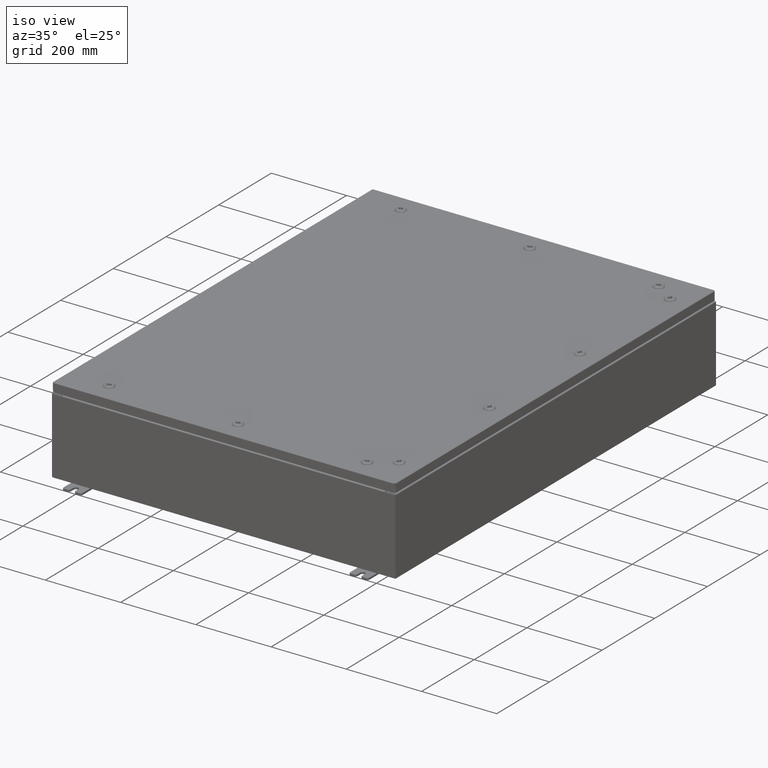
[diagram: clean part render]
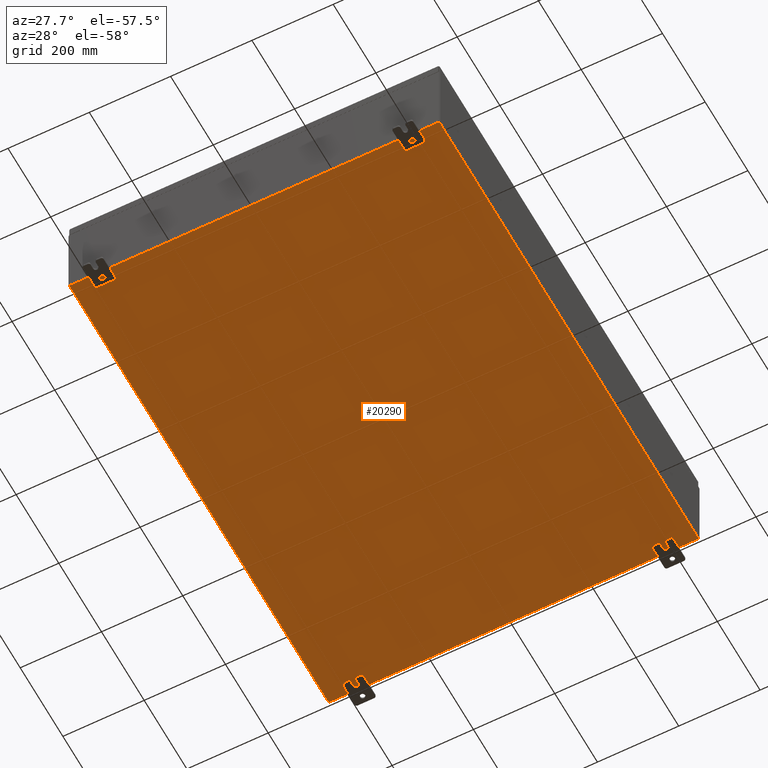
[diagram: tour spotlight — one face highlighted and labeled with its STEP entity id]
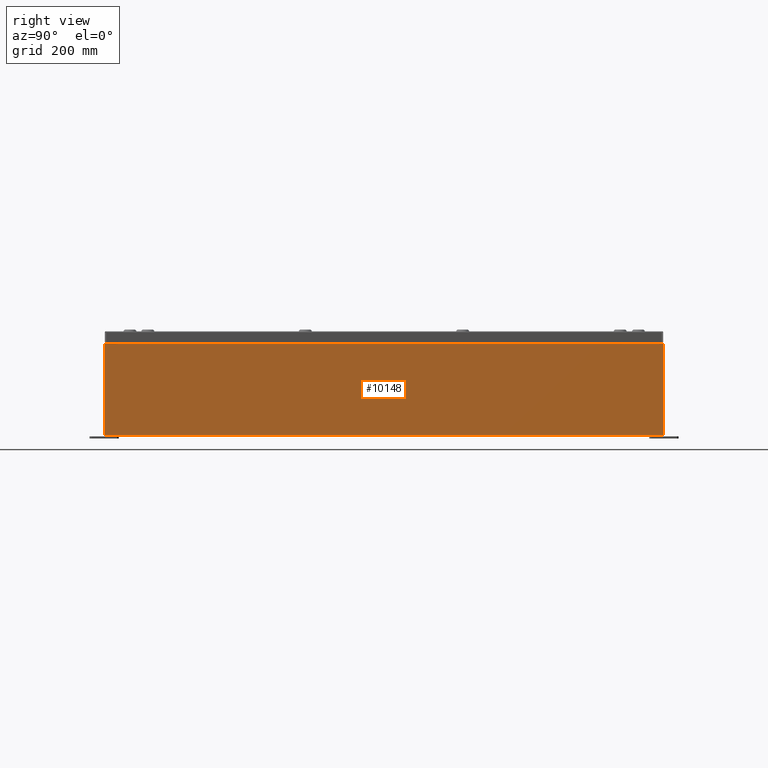
[diagram: tour spotlight — one face highlighted and labeled with its STEP entity id]
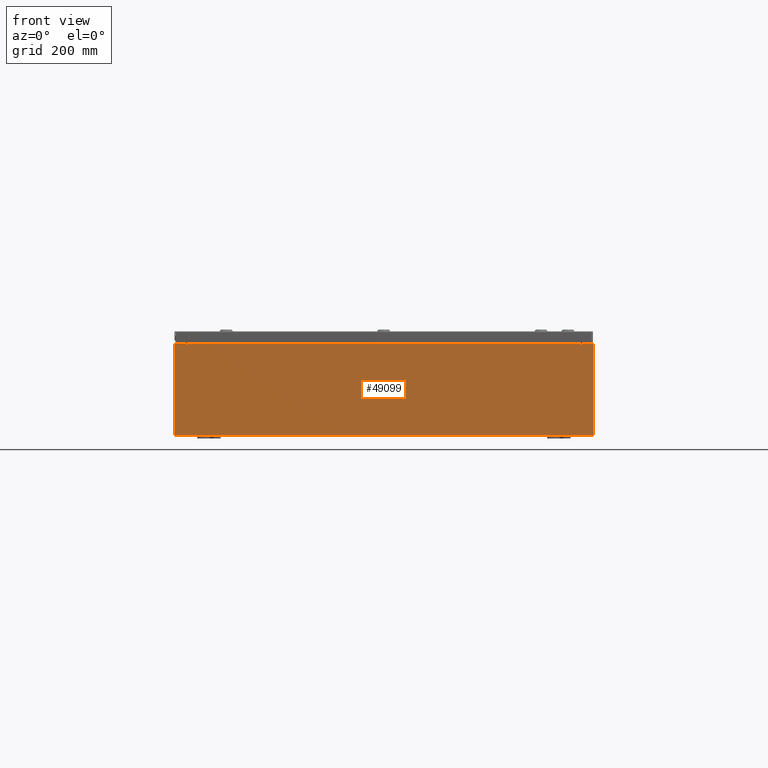
[diagram: tour spotlight — one face highlighted and labeled with its STEP entity id]
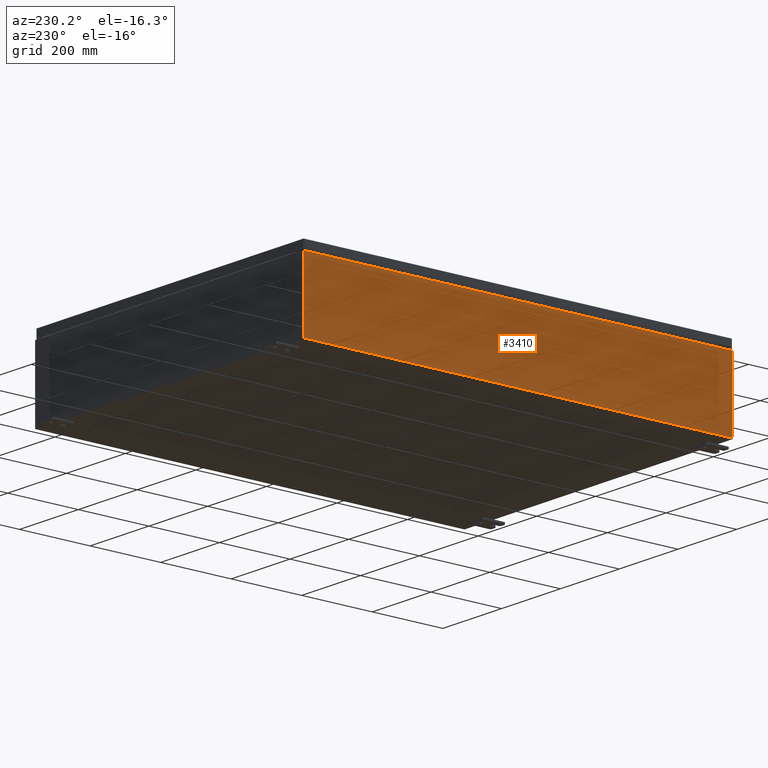
[diagram: tour spotlight — one face highlighted and labeled with its STEP entity id]
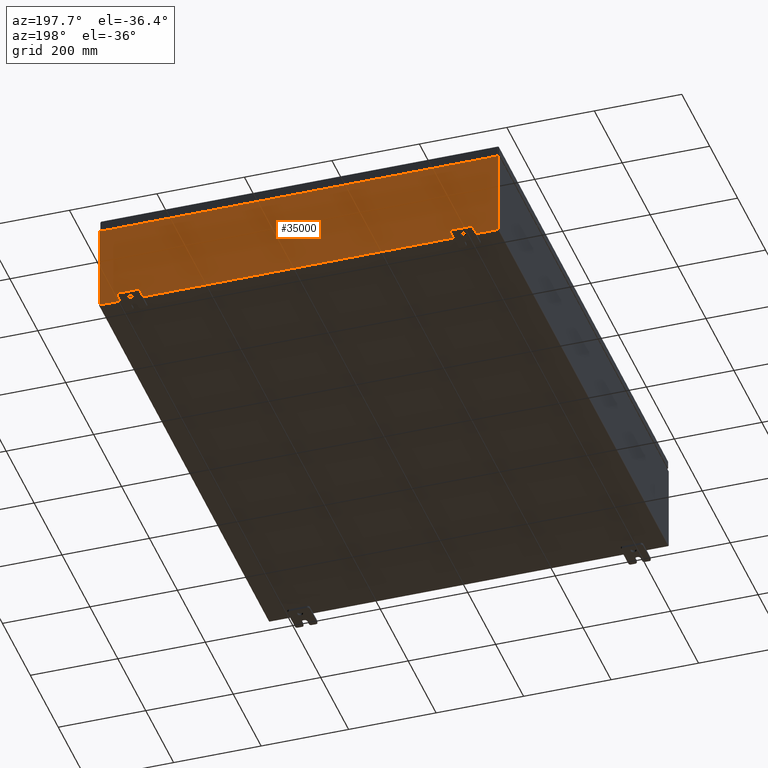
[diagram: tour spotlight — one face highlighted and labeled with its STEP entity id]
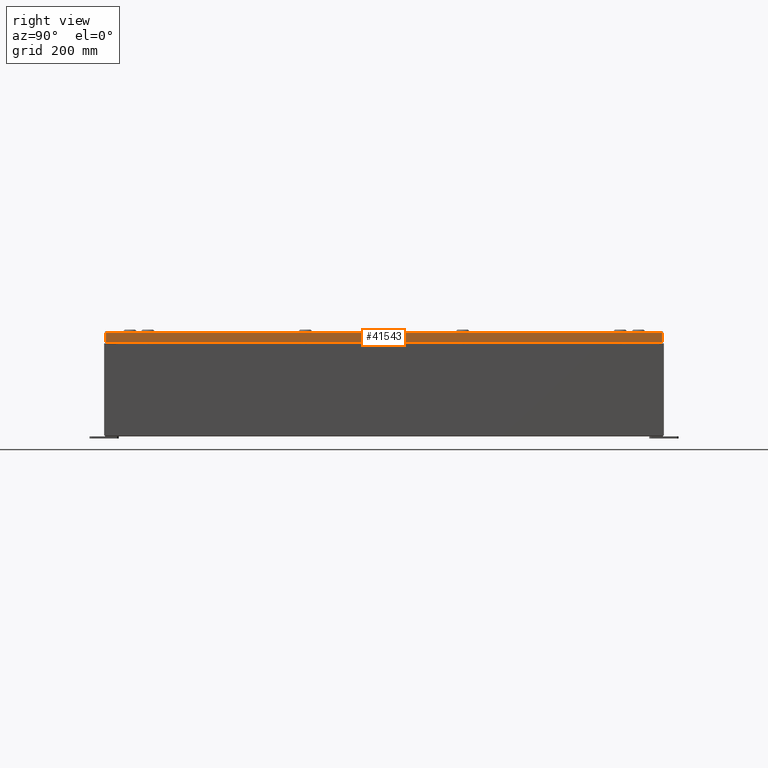
[diagram: tour spotlight — one face highlighted and labeled with its STEP entity id]
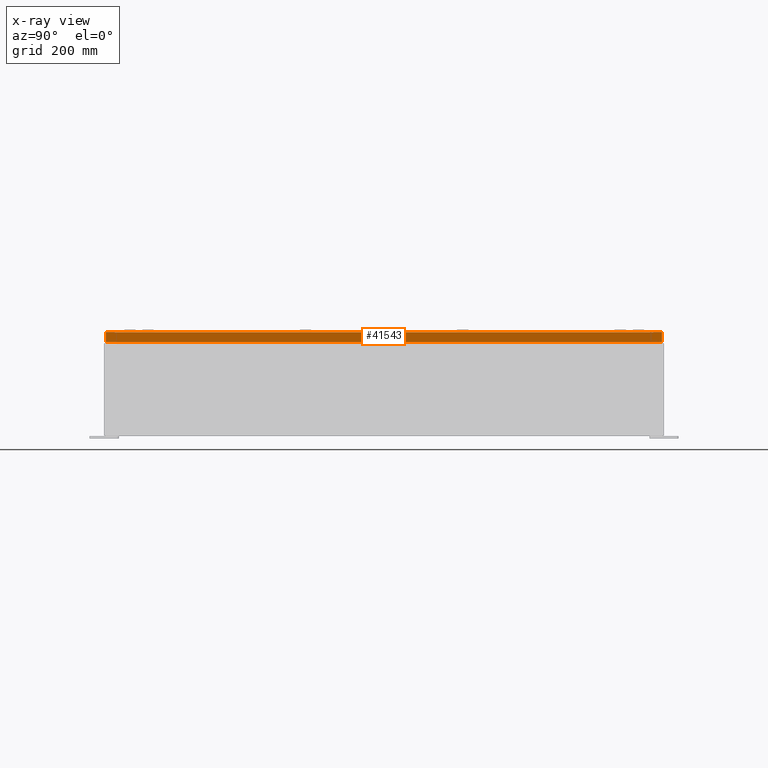
[diagram: x-ray of the same camera — body ghosted, this tour face saturated]
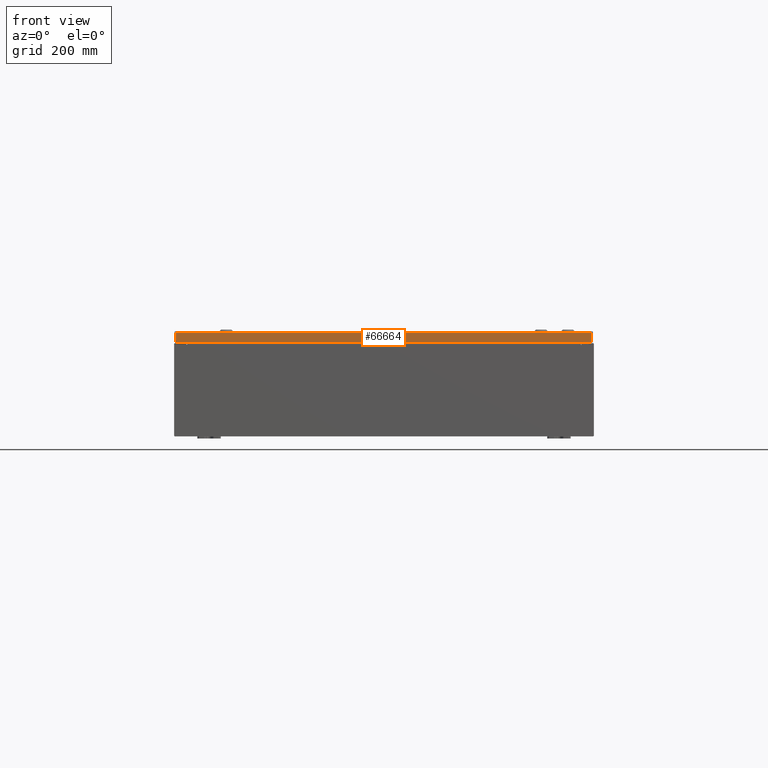
[diagram: tour spotlight — one face highlighted and labeled with its STEP entity id]
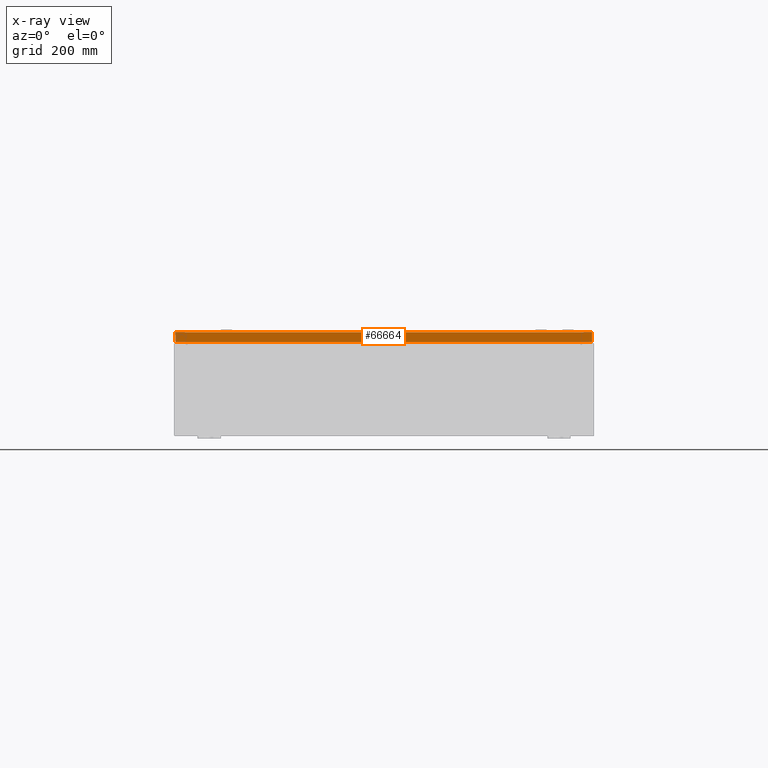
[diagram: x-ray of the same camera — body ghosted, this tour face saturated]
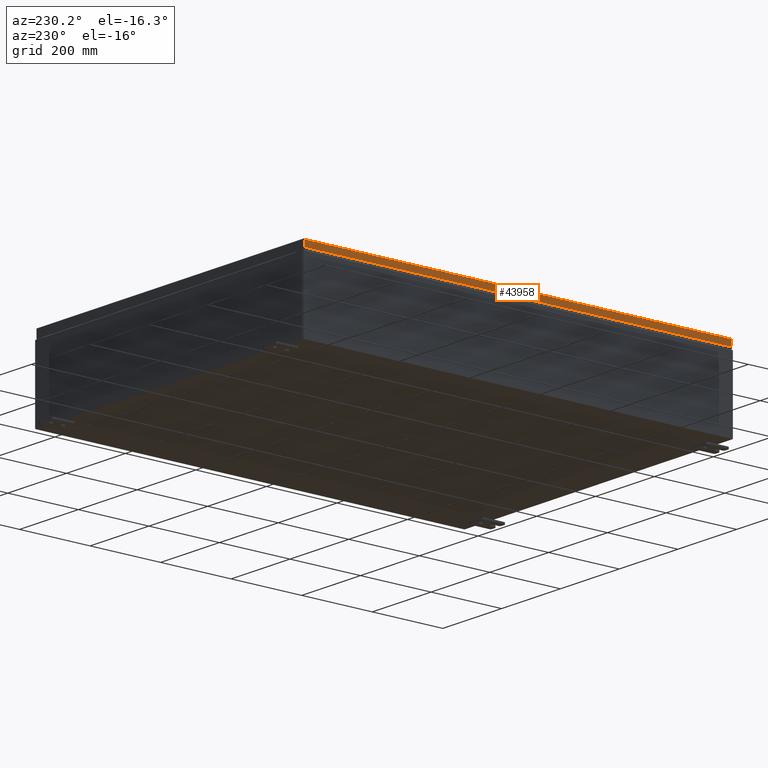
[diagram: tour spotlight — one face highlighted and labeled with its STEP entity id]
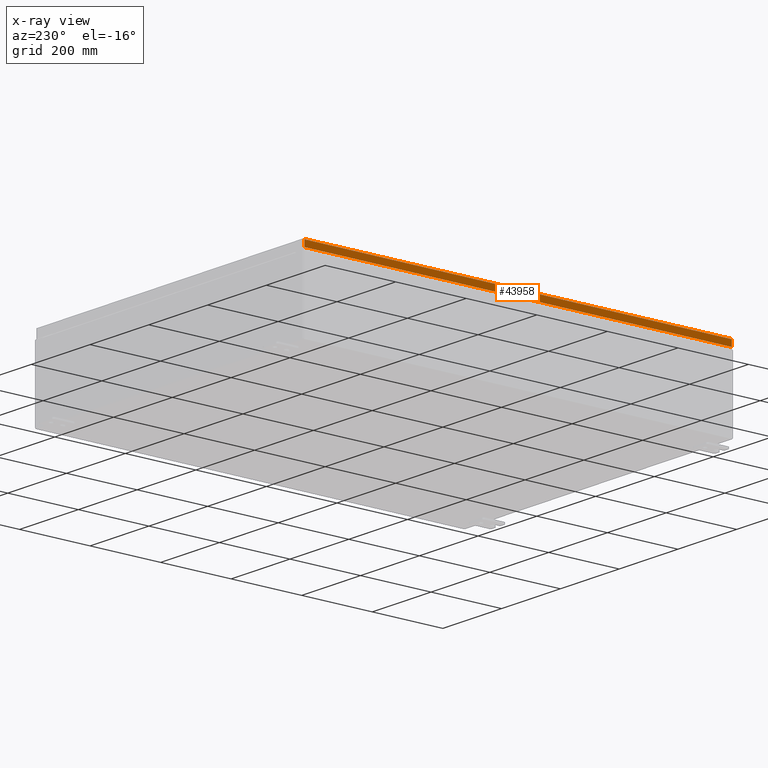
[diagram: x-ray of the same camera — body ghosted, this tour face saturated]
A machine part: a face-by-face anatomy tour. The part has 9060 B-rep faces; the first image is the clean iso view, then the 8 largest visible faces are spotlighted one at a time (largest first), each with its STEP entity span.

Face 1 — auxiliary view, entity #20290. In plain terms, the highlighted planar face has unit normal (0, 0, -1).
Definition (entity closure, byte-faithful):
#190 = ORIENTED_EDGE ( 'NONE', *, *, #42387, .T. ) ;
#993 = CARTESIAN_POINT ( 'NONE',  ( 17.91229999999999500, 23.92529999999998600, -0.07469999999999688000 ) ) ;
#1127 = VECTOR ( 'NONE', #33174, 39.37007874015748100 ) ;
#4955 = VECTOR ( 'NONE', #50678, 39.37007874015748100 ) ;
#7973 = CARTESIAN_POINT ( 'NONE',  ( -18.00000000000000400, 23.92530000000000000, -0.07470000000000000300 ) ) ;
#8254 = ORIENTED_EDGE ( 'NONE', *, *, #42299, .F. ) ;
#9530 = VERTEX_POINT ( 'NONE', #25368 ) ;
#12751 = ORIENTED_EDGE ( 'NONE', *, *, #30479, .F. ) ;
#13034 = CARTESIAN_POINT ( 'NONE',  ( -18.00000000000000400, -23.92530000000000400, -0.07470000000000000300 ) ) ;
#17628 = LINE ( 'NONE', #18793, #42533 ) ;
#18573 = LINE ( 'NONE', #27789, #1127 ) ;
#18793 = CARTESIAN_POINT ( 'NONE',  ( -17.91230000000000500, -23.92529999999998900, -0.07469999999999994700 ) ) ;
#19046 = LINE ( 'NONE', #7973, #4955 ) ;
#20290 = ADVANCED_FACE ( 'NONE', ( #42473 ), #20470, .T. ) ;
#20470 = PLANE ( 'NONE',  #54775 ) ;
#20927 = LINE ( 'NONE', #13034, #60085 ) ;
#25368 = CARTESIAN_POINT ( 'NONE',  ( -17.91230000000000500, 23.92529999999998900, -0.07470000000000000300 ) ) ;
#26153 = VERTEX_POINT ( 'NONE', #40963 ) ;
#27789 = CARTESIAN_POINT ( 'NONE',  ( 17.91229999999999500, 23.92529999999998900, -0.07469999999999688000 ) ) ;
#30479 = EDGE_CURVE ( 'NONE', #67020, #9530, #19046, .T. ) ;
#31151 = DIRECTION ( 'NONE',  ( 0.0000000000000000000, 0.0000000000000000000, -1.000000000000000000 ) ) ;
#33174 = DIRECTION ( 'NONE',  ( -0.0000000000000000000, -1.000000000000000000, -8.208677865577646300E-017 ) ) ;
#34827 = DIRECTION ( 'NONE',  ( -0.0000000000000000000, 1.000000000000000000, -0.0000000000000000000 ) ) ;
#40963 = CARTESIAN_POINT ( 'NONE',  ( -17.91230000000000500, -23.92529999999998600, -0.07469999999999994700 ) ) ;
#41600 = CARTESIAN_POINT ( 'NONE',  ( 0.0000000000000000000, 0.0000000000000000000, -0.07470000000000000300 ) ) ;
#42120 = CARTESIAN_POINT ( 'NONE',  ( 17.91229999999999500, -23.92530000000000000, -0.07470000000000000300 ) ) ;
#42299 = EDGE_CURVE ( 'NONE', #26153, #65574, #20927, .T. ) ;
#42387 = EDGE_CURVE ( 'NONE', #26153, #9530, #17628, .T. ) ;
#42473 = FACE_OUTER_BOUND ( 'NONE', #46696, .T. ) ;
#42533 = VECTOR ( 'NONE', #34827, 39.37007874015748100 ) ;
#46005 = ORIENTED_EDGE ( 'NONE', *, *, #56505, .T. ) ;
#46696 = EDGE_LOOP ( 'NONE', ( #8254, #190, #12751, #46005 ) ) ;
#50678 = DIRECTION ( 'NONE',  ( -1.000000000000000000, -0.0000000000000000000, -0.0000000000000000000 ) ) ;
#54775 = AXIS2_PLACEMENT_3D ( 'NONE', #41600, #31151, #68358 ) ;
#55516 = DIRECTION ( 'NONE',  ( 1.000000000000000000, 1.214154663850783700E-016, 0.0000000000000000000 ) ) ;
#56505 = EDGE_CURVE ( 'NONE', #67020, #65574, #18573, .T. ) ;
#60085 = VECTOR ( 'NONE', #55516, 39.37007874015748100 ) ;
#65574 = VERTEX_POINT ( 'NONE', #42120 ) ;
#67020 = VERTEX_POINT ( 'NONE', #993 ) ;
#68358 = DIRECTION ( 'NONE',  ( -1.000000000000000000, 0.0000000000000000000, -0.0000000000000000000 ) ) ;

Face 2 — right view, entity #10148. In plain terms, the highlighted planar face has unit normal (-1, 0, 0).
Definition (entity closure, byte-faithful):
#722 = CARTESIAN_POINT ( 'NONE',  ( 18.00000000000002500, -23.92529999999998900, 7.837599999999998300 ) ) ;
#1118 = CARTESIAN_POINT ( 'NONE',  ( 18.00000000000002500, 23.92529999999998900, 7.837599999999992100 ) ) ;
#2023 = ORIENTED_EDGE ( 'NONE', *, *, #8500, .T. ) ;
#7041 = VECTOR ( 'NONE', #55668, 39.37007874015748100 ) ;
#7875 = CARTESIAN_POINT ( 'NONE',  ( 18.00000000000002500, 23.92529999999998600, 7.837599999999992100 ) ) ;
#8500 = EDGE_CURVE ( 'NONE', #56664, #17378, #31369, .T. ) ;
#8735 = ORIENTED_EDGE ( 'NONE', *, *, #22962, .T. ) ;
#10148 = ADVANCED_FACE ( 'NONE', ( #55424 ), #56826, .F. ) ;
#17200 = CARTESIAN_POINT ( 'NONE',  ( 17.99999999999999600, -23.92529999999998900, -6.478858477053721600E-014 ) ) ;
#17231 = DIRECTION ( 'NONE',  ( -1.637318952042341600E-031, -1.000000000000000000, -4.567295697298285000E-017 ) ) ;
#17252 = VECTOR ( 'NONE', #27525, 39.37007874015748100 ) ;
#17378 = VERTEX_POINT ( 'NONE', #722 ) ;
#19625 = CARTESIAN_POINT ( 'NONE',  ( 17.99999999999999600, 0.0000000000000000000, -6.478858477053721600E-014 ) ) ;
#22962 = EDGE_CURVE ( 'NONE', #17378, #46799, #41548, .T. ) ;
#27525 = DIRECTION ( 'NONE',  ( -0.0000000000000000000, -1.000000000000000000, -0.0000000000000000000 ) ) ;
#28837 = VECTOR ( 'NONE', #17231, 39.37007874015748100 ) ;
#30477 = LINE ( 'NONE', #49048, #28837 ) ;
#30503 = EDGE_LOOP ( 'NONE', ( #2023, #8735, #58706, #42325 ) ) ;
#31369 = LINE ( 'NONE', #1118, #17252 ) ;
#35274 = LINE ( 'NONE', #35396, #7041 ) ;
#35396 = CARTESIAN_POINT ( 'NONE',  ( 17.99999999999999600, 23.92529999999998900, -6.478858477053721600E-014 ) ) ;
#35640 = DIRECTION ( 'NONE',  ( 3.584876173029202900E-015, 0.0000000000000000000, 1.000000000000000000 ) ) ;
#40608 = AXIS2_PLACEMENT_3D ( 'NONE', #19625, #67515, #35640 ) ;
#41548 = LINE ( 'NONE', #17200, #68192 ) ;
#42325 = ORIENTED_EDGE ( 'NONE', *, *, #54749, .T. ) ;
#44323 = CARTESIAN_POINT ( 'NONE',  ( 17.99999999999999600, -23.92529999999998900, 0.01299999999999896900 ) ) ;
#46799 = VERTEX_POINT ( 'NONE', #44323 ) ;
#48244 = EDGE_CURVE ( 'NONE', #67093, #46799, #30477, .T. ) ;
#49013 = DIRECTION ( 'NONE',  ( -3.584876173029202900E-015, 0.0000000000000000000, -1.000000000000000000 ) ) ;
#49048 = CARTESIAN_POINT ( 'NONE',  ( 17.99999999999999600, -23.92529999999998900, 0.01299999999999984700 ) ) ;
#54749 = EDGE_CURVE ( 'NONE', #67093, #56664, #35274, .T. ) ;
#55424 = FACE_OUTER_BOUND ( 'NONE', #30503, .T. ) ;
#55668 = DIRECTION ( 'NONE',  ( 3.584876173029202900E-015, 0.0000000000000000000, 1.000000000000000000 ) ) ;
#56664 = VERTEX_POINT ( 'NONE', #7875 ) ;
#56826 = PLANE ( 'NONE',  #40608 ) ;
#58706 = ORIENTED_EDGE ( 'NONE', *, *, #48244, .F. ) ;
#59769 = CARTESIAN_POINT ( 'NONE',  ( 17.99999999999999600, 23.92529999999998600, 0.01300000000000203200 ) ) ;
#67093 = VERTEX_POINT ( 'NONE', #59769 ) ;
#67515 = DIRECTION ( 'NONE',  ( -1.000000000000000000, 0.0000000000000000000, 3.584876173029202900E-015 ) ) ;
#68192 = VECTOR ( 'NONE', #49013, 39.37007874015748100 ) ;

Face 3 — front view, entity #49099. In plain terms, the highlighted planar face has unit normal (-0, 1, -0).
Definition (entity closure, byte-faithful):
#1550 = ORIENTED_EDGE ( 'NONE', *, *, #29215, .F. ) ;
#1552 = VECTOR ( 'NONE', #6249, 39.37007874015748100 ) ;
#1913 = DIRECTION ( 'NONE',  ( -8.681145560800009800E-014, 0.0000000000000000000, -1.000000000000000000 ) ) ;
#4069 = ORIENTED_EDGE ( 'NONE', *, *, #13393, .T. ) ;
#4413 = AXIS2_PLACEMENT_3D ( 'NONE', #51185, #19358, #56565 ) ;
#5976 = LINE ( 'NONE', #13303, #59167 ) ;
#6051 = CARTESIAN_POINT ( 'NONE',  ( 0.0000000000000000000, 0.0000000000000000000, 0.0000000000000000000 ) ) ;
#6249 = DIRECTION ( 'NONE',  ( 1.000000000000000000, 0.0000000000000000000, 0.0000000000000000000 ) ) ;
#7541 = VERTEX_POINT ( 'NONE', #23275 ) ;
#7636 = CARTESIAN_POINT ( 'NONE',  ( -16.88719999999999300, -0.0000000000000000000, 0.0000000000000000000 ) ) ;
#7734 = VERTEX_POINT ( 'NONE', #50905 ) ;
#8958 = CARTESIAN_POINT ( 'NONE',  ( -17.92529999999999600, 0.0000000000000000000, 3.925300000000000500 ) ) ;
#9074 = LINE ( 'NONE', #15035, #51449 ) ;
#9161 = CARTESIAN_POINT ( 'NONE',  ( -16.88719999999999300, -0.0000000000000000000, 3.874950000000000100 ) ) ;
#9480 = AXIS2_PLACEMENT_3D ( 'NONE', #6051, #27355, #64605 ) ;
#9920 = ORIENTED_EDGE ( 'NONE', *, *, #47295, .F. ) ;
#11386 = PLANE ( 'NONE',  #9480 ) ;
#11970 = CARTESIAN_POINT ( 'NONE',  ( 16.90587500000000500, 0.0000000000000000000, 3.874950000000000100 ) ) ;
#12980 = DIRECTION ( 'NONE',  ( 0.0000000000000000000, 0.0000000000000000000, -1.000000000000000000 ) ) ;
#13303 = CARTESIAN_POINT ( 'NONE',  ( 16.88720000000000700, 0.0000000000000000000, 0.0000000000000000000 ) ) ;
#13393 = EDGE_CURVE ( 'NONE', #64724, #36173, #63494, .T. ) ;
#14301 = DIRECTION ( 'NONE',  ( -0.0000000000000000000, -0.0000000000000000000, 1.000000000000000000 ) ) ;
#15035 = CARTESIAN_POINT ( 'NONE',  ( -17.92529999999999600, 0.0000000000000000000, 3.925300000000000500 ) ) ;
#16177 = CARTESIAN_POINT ( 'NONE',  ( -17.92529999999999600, 0.0000000000000000000, 3.925300000000000500 ) ) ;
#16693 = CARTESIAN_POINT ( 'NONE',  ( 17.92530000000000400, 0.0000000000000000000, 3.925300000000000500 ) ) ;
#17262 = DIRECTION ( 'NONE',  ( 0.0000000000000000000, 0.0000000000000000000, -1.000000000000000000 ) ) ;
#18173 = EDGE_CURVE ( 'NONE', #53444, #59881, #24364, .T. ) ;
#18607 = DIRECTION ( 'NONE',  ( 0.0000000000000000000, 0.0000000000000000000, 1.000000000000000000 ) ) ;
#19358 = DIRECTION ( 'NONE',  ( -0.0000000000000000000, 1.000000000000000000, -0.0000000000000000000 ) ) ;
#20821 = EDGE_CURVE ( 'NONE', #7541, #64724, #39960, .T. ) ;
#21031 = VECTOR ( 'NONE', #14301, 39.37007874015748100 ) ;
#22052 = CARTESIAN_POINT ( 'NONE',  ( 16.92455000000000400, 0.0000000000000000000, 3.925300000000000500 ) ) ;
#23275 = CARTESIAN_POINT ( 'NONE',  ( 17.92530000000000400, 0.0000000000000000000, -3.925299999999999100 ) ) ;
#24364 = LINE ( 'NONE', #64761, #65141 ) ;
#24445 = EDGE_CURVE ( 'NONE', #36173, #59881, #9074, .T. ) ;
#27355 = DIRECTION ( 'NONE',  ( 0.0000000000000000000, -1.000000000000000000, 0.0000000000000000000 ) ) ;
#27409 = LINE ( 'NONE', #65564, #66548 ) ;
#27782 = CARTESIAN_POINT ( 'NONE',  ( 16.88720000000000700, 0.0000000000000000000, 3.912300000000000100 ) ) ;
#27983 = VERTEX_POINT ( 'NONE', #16693 ) ;
#28466 = EDGE_CURVE ( 'NONE', #66988, #27983, #31615, .T. ) ;
#28776 = FACE_OUTER_BOUND ( 'NONE', #30335, .T. ) ;
#29215 = EDGE_CURVE ( 'NONE', #66988, #46492, #27409, .T. ) ;
#30116 = CARTESIAN_POINT ( 'NONE',  ( -17.92529999999999600, 0.0000000000000000000, -3.925299999999999100 ) ) ;
#30335 = EDGE_LOOP ( 'NONE', ( #41315, #53083, #9920, #30535, #62202, #61489, #1550, #66412, #34793, #49748, #4069, #48119 ) ) ;
#30535 = ORIENTED_EDGE ( 'NONE', *, *, #47053, .T. ) ;
#31273 = EDGE_CURVE ( 'NONE', #38484, #53444, #64745, .T. ) ;
#31615 = LINE ( 'NONE', #16177, #59957 ) ;
#33923 = VECTOR ( 'NONE', #12980, 39.37007874015748100 ) ;
#34793 = ORIENTED_EDGE ( 'NONE', *, *, #63358, .T. ) ;
#35081 = CARTESIAN_POINT ( 'NONE',  ( -16.88719999999999300, 3.756290991288361700E-016, 3.912300000000000100 ) ) ;
#36173 = VERTEX_POINT ( 'NONE', #37524 ) ;
#37524 = CARTESIAN_POINT ( 'NONE',  ( -17.92529999999999600, 0.0000000000000000000, 3.925300000000000500 ) ) ;
#37576 = CIRCLE ( 'NONE', #37623, 0.01867499999999949400 ) ;
#37623 = AXIS2_PLACEMENT_3D ( 'NONE', #11970, #49085, #17262 ) ;
#38484 = VERTEX_POINT ( 'NONE', #9161 ) ;
#39735 = VECTOR ( 'NONE', #57607, 39.37007874015748100 ) ;
#39960 = LINE ( 'NONE', #50874, #66629 ) ;
#40181 = DIRECTION ( 'NONE',  ( -1.000000000000000000, -0.0000000000000000000, -0.0000000000000000000 ) ) ;
#41315 = ORIENTED_EDGE ( 'NONE', *, *, #18173, .F. ) ;
#42211 = LINE ( 'NONE', #43350, #1552 ) ;
#43350 = CARTESIAN_POINT ( 'NONE',  ( -16.88719999999999600, 3.756290991288361700E-016, 3.912300000000000100 ) ) ;
#46492 = VERTEX_POINT ( 'NONE', #68626 ) ;
#46591 = DIRECTION ( 'NONE',  ( 1.000000000000000000, 0.0000000000000000000, 0.0000000000000000000 ) ) ;
#47053 = EDGE_CURVE ( 'NONE', #50755, #53396, #42211, .T. ) ;
#47295 = EDGE_CURVE ( 'NONE', #50755, #38484, #53022, .T. ) ;
#47800 = CARTESIAN_POINT ( 'NONE',  ( 17.92530000000000400, 0.0000000000000000000, 3.925300000000000500 ) ) ;
#48119 = ORIENTED_EDGE ( 'NONE', *, *, #24445, .T. ) ;
#48889 = DIRECTION ( 'NONE',  ( 0.0000000000000000000, 0.0000000000000000000, 1.000000000000000000 ) ) ;
#49085 = DIRECTION ( 'NONE',  ( -0.0000000000000000000, 1.000000000000000000, -0.0000000000000000000 ) ) ;
#49099 = ADVANCED_FACE ( 'NONE', ( #28776 ), #11386, .F. ) ;
#49748 = ORIENTED_EDGE ( 'NONE', *, *, #20821, .T. ) ;
#50755 = VERTEX_POINT ( 'NONE', #35081 ) ;
#50874 = CARTESIAN_POINT ( 'NONE',  ( -17.92529999999999600, 0.0000000000000000000, -3.925299999999999100 ) ) ;
#50905 = CARTESIAN_POINT ( 'NONE',  ( 16.88720000000000700, 0.0000000000000000000, 3.874950000000000100 ) ) ;
#51185 = CARTESIAN_POINT ( 'NONE',  ( -16.90587499999999500, 0.0000000000000000000, 3.874950000000000100 ) ) ;
#51449 = VECTOR ( 'NONE', #46591, 39.37007874015748100 ) ;
#51761 = CARTESIAN_POINT ( 'NONE',  ( -16.92454999999999300, 0.0000000000000000000, 3.925300000000000500 ) ) ;
#53022 = LINE ( 'NONE', #7636, #33923 ) ;
#53083 = ORIENTED_EDGE ( 'NONE', *, *, #31273, .F. ) ;
#53396 = VERTEX_POINT ( 'NONE', #27782 ) ;
#53444 = VERTEX_POINT ( 'NONE', #60154 ) ;
#53883 = LINE ( 'NONE', #47800, #39735 ) ;
#56565 = DIRECTION ( 'NONE',  ( 0.0000000000000000000, 0.0000000000000000000, -1.000000000000000000 ) ) ;
#57284 = EDGE_CURVE ( 'NONE', #46492, #7734, #37576, .T. ) ;
#57607 = DIRECTION ( 'NONE',  ( 0.0000000000000000000, 0.0000000000000000000, -1.000000000000000000 ) ) ;
#58220 = EDGE_CURVE ( 'NONE', #7734, #53396, #5976, .T. ) ;
#59167 = VECTOR ( 'NONE', #18607, 39.37007874015748100 ) ;
#59881 = VERTEX_POINT ( 'NONE', #51761 ) ;
#59957 = VECTOR ( 'NONE', #62904, 39.37007874015748100 ) ;
#60154 = CARTESIAN_POINT ( 'NONE',  ( -16.92454999999999300, 0.0000000000000000000, 3.874950000000000100 ) ) ;
#61489 = ORIENTED_EDGE ( 'NONE', *, *, #57284, .F. ) ;
#62202 = ORIENTED_EDGE ( 'NONE', *, *, #58220, .F. ) ;
#62904 = DIRECTION ( 'NONE',  ( 1.000000000000000000, 0.0000000000000000000, 0.0000000000000000000 ) ) ;
#63358 = EDGE_CURVE ( 'NONE', #27983, #7541, #53883, .T. ) ;
#63494 = LINE ( 'NONE', #8958, #21031 ) ;
#64605 = DIRECTION ( 'NONE',  ( 0.0000000000000000000, -0.0000000000000000000, -1.000000000000000000 ) ) ;
#64724 = VERTEX_POINT ( 'NONE', #30116 ) ;
#64745 = CIRCLE ( 'NONE', #4413, 0.01867499999999949400 ) ;
#64761 = CARTESIAN_POINT ( 'NONE',  ( -16.92454999999999300, -0.0000000000000000000, 0.0000000000000000000 ) ) ;
#65141 = VECTOR ( 'NONE', #48889, 39.37007874015748100 ) ;
#65564 = CARTESIAN_POINT ( 'NONE',  ( 16.92454999999967000, -0.0000000000000000000, -1.469244821010349400E-012 ) ) ;
#66412 = ORIENTED_EDGE ( 'NONE', *, *, #28466, .T. ) ;
#66548 = VECTOR ( 'NONE', #1913, 39.37007874015748100 ) ;
#66629 = VECTOR ( 'NONE', #40181, 39.37007874015748100 ) ;
#66988 = VERTEX_POINT ( 'NONE', #22052 ) ;
#68626 = CARTESIAN_POINT ( 'NONE',  ( 16.92455000000000400, 0.0000000000000000000, 3.874950000000000100 ) ) ;

Face 4 — auxiliary view, entity #3410. In plain terms, the highlighted planar face has unit normal (1, 0, 0).
Definition (entity closure, byte-faithful):
#692 = DIRECTION ( 'NONE',  ( -3.584876173029202900E-015, 0.0000000000000000000, 1.000000000000000000 ) ) ;
#927 = CARTESIAN_POINT ( 'NONE',  ( -18.00000000000000400, -23.92529999999999600, -6.478858477053725400E-014 ) ) ;
#1625 = PLANE ( 'NONE',  #21683 ) ;
#1898 = VECTOR ( 'NONE', #5066, 39.37007874015748100 ) ;
#3410 = ADVANCED_FACE ( 'NONE', ( #33336 ), #1625, .F. ) ;
#4764 = CARTESIAN_POINT ( 'NONE',  ( -18.00000000000003200, -23.92529999999998900, 7.837599999999999200 ) ) ;
#5066 = DIRECTION ( 'NONE',  ( 3.584876173029202900E-015, 0.0000000000000000000, -1.000000000000000000 ) ) ;
#10095 = DIRECTION ( 'NONE',  ( 0.0000000000000000000, 1.000000000000000000, 0.0000000000000000000 ) ) ;
#10595 = LINE ( 'NONE', #4764, #23021 ) ;
#12917 = DIRECTION ( 'NONE',  ( 1.000000000000000000, 0.0000000000000000000, 3.584876173029202900E-015 ) ) ;
#17845 = LINE ( 'NONE', #26385, #30295 ) ;
#17955 = ORIENTED_EDGE ( 'NONE', *, *, #19437, .T. ) ;
#19437 = EDGE_CURVE ( 'NONE', #56938, #47007, #44211, .T. ) ;
#20887 = LINE ( 'NONE', #927, #31705 ) ;
#21397 = EDGE_CURVE ( 'NONE', #62479, #65018, #20887, .T. ) ;
#21683 = AXIS2_PLACEMENT_3D ( 'NONE', #60555, #12917, #24088 ) ;
#23021 = VECTOR ( 'NONE', #10095, 39.37007874015748100 ) ;
#24088 = DIRECTION ( 'NONE',  ( 3.584876173029202900E-015, 0.0000000000000000000, -1.000000000000000000 ) ) ;
#26385 = CARTESIAN_POINT ( 'NONE',  ( -18.00000000000000400, 23.92529999999998900, 0.01299999999999984700 ) ) ;
#30295 = VECTOR ( 'NONE', #31729, 39.37007874015748100 ) ;
#31705 = VECTOR ( 'NONE', #692, 39.37007874015748100 ) ;
#31729 = DIRECTION ( 'NONE',  ( -0.0000000000000000000, 1.000000000000000000, -0.0000000000000000000 ) ) ;
#33101 = CARTESIAN_POINT ( 'NONE',  ( -18.00000000000003200, -23.92529999999998600, 7.837599999999999200 ) ) ;
#33336 = FACE_OUTER_BOUND ( 'NONE', #50806, .T. ) ;
#36086 = EDGE_CURVE ( 'NONE', #62479, #47007, #17845, .T. ) ;
#41662 = CARTESIAN_POINT ( 'NONE',  ( -18.00000000000003200, 23.92529999999998900, 7.837599999999999200 ) ) ;
#43049 = ORIENTED_EDGE ( 'NONE', *, *, #21397, .T. ) ;
#44211 = LINE ( 'NONE', #47508, #1898 ) ;
#47007 = VERTEX_POINT ( 'NONE', #64097 ) ;
#47179 = CARTESIAN_POINT ( 'NONE',  ( -18.00000000000000400, -23.92529999999998600, 0.01299999999999984700 ) ) ;
#47508 = CARTESIAN_POINT ( 'NONE',  ( -18.00000000000000400, 23.92529999999998900, -6.478858477053725400E-014 ) ) ;
#47996 = EDGE_CURVE ( 'NONE', #65018, #56938, #10595, .T. ) ;
#50637 = ORIENTED_EDGE ( 'NONE', *, *, #47996, .T. ) ;
#50806 = EDGE_LOOP ( 'NONE', ( #50637, #17955, #67578, #43049 ) ) ;
#56938 = VERTEX_POINT ( 'NONE', #41662 ) ;
#60555 = CARTESIAN_POINT ( 'NONE',  ( -18.00000000000000400, 0.0000000000000000000, -6.478858477053725400E-014 ) ) ;
#62479 = VERTEX_POINT ( 'NONE', #47179 ) ;
#64097 = CARTESIAN_POINT ( 'NONE',  ( -18.00000000000000400, 23.92529999999998900, 0.01299999999999983600 ) ) ;
#65018 = VERTEX_POINT ( 'NONE', #33101 ) ;
#67578 = ORIENTED_EDGE ( 'NONE', *, *, #36086, .F. ) ;

Face 5 — auxiliary view, entity #35000. In plain terms, the highlighted planar face has unit normal (0, -1, 0).
Definition (entity closure, byte-faithful):
#1192 = LINE ( 'NONE', #39219, #68466 ) ;
#2776 = CARTESIAN_POINT ( 'NONE',  ( -16.88719999999999600, 3.756290991288361700E-016, 3.912300000000000100 ) ) ;
#2814 = LINE ( 'NONE', #38241, #16859 ) ;
#3117 = DIRECTION ( 'NONE',  ( 0.0000000000000000000, 0.0000000000000000000, -1.000000000000000000 ) ) ;
#3811 = CIRCLE ( 'NONE', #57357, 0.01867499999999949400 ) ;
#4201 = ORIENTED_EDGE ( 'NONE', *, *, #24837, .T. ) ;
#6400 = DIRECTION ( 'NONE',  ( 0.0000000000000000000, -1.000000000000000000, 0.0000000000000000000 ) ) ;
#6410 = VECTOR ( 'NONE', #13103, 39.37007874015748100 ) ;
#7748 = CARTESIAN_POINT ( 'NONE',  ( -16.88719999999999300, -0.0000000000000000000, 0.0000000000000000000 ) ) ;
#7818 = VERTEX_POINT ( 'NONE', #45998 ) ;
#7887 = VERTEX_POINT ( 'NONE', #30866 ) ;
#8364 = CARTESIAN_POINT ( 'NONE',  ( 16.92455000000000400, 0.0000000000000000000, 3.874950000000000100 ) ) ;
#9394 = CARTESIAN_POINT ( 'NONE',  ( -16.92454999999999300, -0.0000000000000000000, 0.0000000000000000000 ) ) ;
#9449 = VERTEX_POINT ( 'NONE', #61513 ) ;
#11128 = VERTEX_POINT ( 'NONE', #59625 ) ;
#11741 = AXIS2_PLACEMENT_3D ( 'NONE', #19666, #56867, #24979 ) ;
#11890 = VECTOR ( 'NONE', #12358, 39.37007874015748100 ) ;
#12358 = DIRECTION ( 'NONE',  ( 1.000000000000000000, 0.0000000000000000000, 0.0000000000000000000 ) ) ;
#12726 = EDGE_LOOP ( 'NONE', ( #57172, #37193, #45621, #4201, #65544, #18976, #41457, #23965, #68033, #53882, #48056, #16477 ) ) ;
#12805 = DIRECTION ( 'NONE',  ( -1.000000000000000000, -0.0000000000000000000, -0.0000000000000000000 ) ) ;
#12992 = CARTESIAN_POINT ( 'NONE',  ( 17.92530000000000400, 0.0000000000000000000, -3.925299999999999100 ) ) ;
#13103 = DIRECTION ( 'NONE',  ( 0.0000000000000000000, 0.0000000000000000000, -1.000000000000000000 ) ) ;
#13192 = EDGE_CURVE ( 'NONE', #60230, #7818, #1192, .T. ) ;
#13503 = EDGE_CURVE ( 'NONE', #7887, #11128, #19397, .T. ) ;
#14445 = VERTEX_POINT ( 'NONE', #8364 ) ;
#15085 = VECTOR ( 'NONE', #23542, 39.37007874015748100 ) ;
#15825 = EDGE_CURVE ( 'NONE', #41861, #7887, #3811, .T. ) ;
#16477 = ORIENTED_EDGE ( 'NONE', *, *, #39858, .T. ) ;
#16809 = PLANE ( 'NONE',  #34859 ) ;
#16859 = VECTOR ( 'NONE', #16891, 39.37007874015748100 ) ;
#16891 = DIRECTION ( 'NONE',  ( 0.0000000000000000000, 0.0000000000000000000, 1.000000000000000000 ) ) ;
#18976 = ORIENTED_EDGE ( 'NONE', *, *, #49585, .F. ) ;
#19397 = LINE ( 'NONE', #9394, #45978 ) ;
#19666 = CARTESIAN_POINT ( 'NONE',  ( 16.90587500000000500, 0.0000000000000000000, 3.874950000000000100 ) ) ;
#19741 = CARTESIAN_POINT ( 'NONE',  ( -16.90587499999999500, 0.0000000000000000000, 3.874950000000000100 ) ) ;
#23542 = DIRECTION ( 'NONE',  ( 1.000000000000000000, 0.0000000000000000000, 0.0000000000000000000 ) ) ;
#23965 = ORIENTED_EDGE ( 'NONE', *, *, #41465, .T. ) ;
#24579 = CARTESIAN_POINT ( 'NONE',  ( 16.92455000000000400, 0.0000000000000000000, 3.925300000000000500 ) ) ;
#24837 = EDGE_CURVE ( 'NONE', #54422, #49335, #53916, .T. ) ;
#24979 = DIRECTION ( 'NONE',  ( 0.0000000000000000000, 0.0000000000000000000, -1.000000000000000000 ) ) ;
#25048 = DIRECTION ( 'NONE',  ( 0.0000000000000000000, 0.0000000000000000000, -1.000000000000000000 ) ) ;
#25813 = CARTESIAN_POINT ( 'NONE',  ( 16.92454999999967000, -0.0000000000000000000, -1.469244821010349400E-012 ) ) ;
#27283 = VECTOR ( 'NONE', #39857, 39.37007874015748100 ) ;
#29224 = LINE ( 'NONE', #55382, #15085 ) ;
#30262 = VECTOR ( 'NONE', #57707, 39.37007874015748100 ) ;
#30866 = CARTESIAN_POINT ( 'NONE',  ( -16.92454999999999300, 0.0000000000000000000, 3.874950000000000100 ) ) ;
#34672 = VECTOR ( 'NONE', #3117, 39.37007874015748100 ) ;
#34859 = AXIS2_PLACEMENT_3D ( 'NONE', #38159, #6400, #43503 ) ;
#35000 = ADVANCED_FACE ( 'NONE', ( #63662 ), #16809, .F. ) ;
#37193 = ORIENTED_EDGE ( 'NONE', *, *, #15825, .F. ) ;
#37317 = VECTOR ( 'NONE', #66579, 39.37007874015748100 ) ;
#37939 = LINE ( 'NONE', #7748, #6410 ) ;
#38159 = CARTESIAN_POINT ( 'NONE',  ( 0.0000000000000000000, 0.0000000000000000000, 0.0000000000000000000 ) ) ;
#38241 = CARTESIAN_POINT ( 'NONE',  ( 16.88720000000000700, 0.0000000000000000000, 0.0000000000000000000 ) ) ;
#39219 = CARTESIAN_POINT ( 'NONE',  ( -17.92529999999999600, 0.0000000000000000000, -3.925299999999999100 ) ) ;
#39857 = DIRECTION ( 'NONE',  ( 1.000000000000000000, 0.0000000000000000000, 0.0000000000000000000 ) ) ;
#39858 = EDGE_CURVE ( 'NONE', #53077, #11128, #68388, .T. ) ;
#41457 = ORIENTED_EDGE ( 'NONE', *, *, #54908, .F. ) ;
#41465 = EDGE_CURVE ( 'NONE', #52805, #43265, #29224, .T. ) ;
#41861 = VERTEX_POINT ( 'NONE', #47877 ) ;
#43265 = VERTEX_POINT ( 'NONE', #57083 ) ;
#43503 = DIRECTION ( 'NONE',  ( 0.0000000000000000000, -0.0000000000000000000, -1.000000000000000000 ) ) ;
#44382 = LINE ( 'NONE', #25813, #30262 ) ;
#44540 = CARTESIAN_POINT ( 'NONE',  ( 16.88720000000000700, 0.0000000000000000000, 3.912300000000000100 ) ) ;
#45376 = CIRCLE ( 'NONE', #11741, 0.01867499999999949400 ) ;
#45621 = ORIENTED_EDGE ( 'NONE', *, *, #48448, .F. ) ;
#45978 = VECTOR ( 'NONE', #46517, 39.37007874015748100 ) ;
#45998 = CARTESIAN_POINT ( 'NONE',  ( -17.92529999999999600, 0.0000000000000000000, -3.925299999999999100 ) ) ;
#46517 = DIRECTION ( 'NONE',  ( 0.0000000000000000000, 0.0000000000000000000, 1.000000000000000000 ) ) ;
#47877 = CARTESIAN_POINT ( 'NONE',  ( -16.88719999999999300, -0.0000000000000000000, 3.874950000000000100 ) ) ;
#48056 = ORIENTED_EDGE ( 'NONE', *, *, #60833, .T. ) ;
#48448 = EDGE_CURVE ( 'NONE', #54422, #41861, #37939, .T. ) ;
#48633 = EDGE_CURVE ( 'NONE', #43265, #60230, #57928, .T. ) ;
#49335 = VERTEX_POINT ( 'NONE', #44540 ) ;
#49585 = EDGE_CURVE ( 'NONE', #14445, #9449, #45376, .T. ) ;
#49805 = LINE ( 'NONE', #61257, #37317 ) ;
#52805 = VERTEX_POINT ( 'NONE', #24579 ) ;
#53077 = VERTEX_POINT ( 'NONE', #58058 ) ;
#53882 = ORIENTED_EDGE ( 'NONE', *, *, #13192, .T. ) ;
#53916 = LINE ( 'NONE', #2776, #27283 ) ;
#54422 = VERTEX_POINT ( 'NONE', #57919 ) ;
#54842 = CARTESIAN_POINT ( 'NONE',  ( -17.92529999999999600, 0.0000000000000000000, 3.925300000000000500 ) ) ;
#54908 = EDGE_CURVE ( 'NONE', #52805, #14445, #44382, .T. ) ;
#55382 = CARTESIAN_POINT ( 'NONE',  ( -17.92529999999999600, 0.0000000000000000000, 3.925300000000000500 ) ) ;
#56269 = CARTESIAN_POINT ( 'NONE',  ( 17.92530000000000400, 0.0000000000000000000, 3.925300000000000500 ) ) ;
#56459 = EDGE_CURVE ( 'NONE', #9449, #49335, #2814, .T. ) ;
#56867 = DIRECTION ( 'NONE',  ( -0.0000000000000000000, 1.000000000000000000, -0.0000000000000000000 ) ) ;
#56941 = DIRECTION ( 'NONE',  ( -0.0000000000000000000, 1.000000000000000000, -0.0000000000000000000 ) ) ;
#57083 = CARTESIAN_POINT ( 'NONE',  ( 17.92530000000000400, 0.0000000000000000000, 3.925300000000000500 ) ) ;
#57172 = ORIENTED_EDGE ( 'NONE', *, *, #13503, .F. ) ;
#57357 = AXIS2_PLACEMENT_3D ( 'NONE', #19741, #56941, #25048 ) ;
#57707 = DIRECTION ( 'NONE',  ( -8.681145560800009800E-014, 0.0000000000000000000, -1.000000000000000000 ) ) ;
#57919 = CARTESIAN_POINT ( 'NONE',  ( -16.88719999999999300, 3.756290991288361700E-016, 3.912300000000000100 ) ) ;
#57928 = LINE ( 'NONE', #56269, #34672 ) ;
#58058 = CARTESIAN_POINT ( 'NONE',  ( -17.92529999999999600, 0.0000000000000000000, 3.925300000000000500 ) ) ;
#59625 = CARTESIAN_POINT ( 'NONE',  ( -16.92454999999999300, 0.0000000000000000000, 3.925300000000000500 ) ) ;
#60230 = VERTEX_POINT ( 'NONE', #12992 ) ;
#60833 = EDGE_CURVE ( 'NONE', #7818, #53077, #49805, .T. ) ;
#61257 = CARTESIAN_POINT ( 'NONE',  ( -17.92529999999999600, 0.0000000000000000000, 3.925300000000000500 ) ) ;
#61513 = CARTESIAN_POINT ( 'NONE',  ( 16.88720000000000700, 0.0000000000000000000, 3.874950000000000100 ) ) ;
#63662 = FACE_OUTER_BOUND ( 'NONE', #12726, .T. ) ;
#65544 = ORIENTED_EDGE ( 'NONE', *, *, #56459, .F. ) ;
#66579 = DIRECTION ( 'NONE',  ( -0.0000000000000000000, -0.0000000000000000000, 1.000000000000000000 ) ) ;
#68033 = ORIENTED_EDGE ( 'NONE', *, *, #48633, .T. ) ;
#68388 = LINE ( 'NONE', #54842, #11890 ) ;
#68466 = VECTOR ( 'NONE', #12805, 39.37007874015748100 ) ;

Face 6 — right view, entity #41543. An x-ray twin of the same camera follows (body ghosted, this face saturated) — the face is partly hidden behind the body. In plain terms, the highlighted planar face has unit normal (1, 0, 0).
Definition (entity closure, byte-faithful):
#1965 = EDGE_CURVE ( 'NONE', #16864, #36649, #50020, .T. ) ;
#2651 = CARTESIAN_POINT ( 'NONE',  ( 17.93750000000000400, -23.84865786437626800, -0.07469999999999980800 ) ) ;
#2700 = CARTESIAN_POINT ( 'NONE',  ( 17.93750000000000400, 0.0000000000000000000, 4.568609605355756000E-014 ) ) ;
#3178 = VECTOR ( 'NONE', #29893, 39.37007874015748100 ) ;
#6617 = DIRECTION ( 'NONE',  ( 0.0000000000000000000, -1.000000000000000000, 0.0000000000000000000 ) ) ;
#8015 = DIRECTION ( 'NONE',  ( 2.532419924601866100E-015, 0.0000000000000000000, -1.000000000000000000 ) ) ;
#8782 = ORIENTED_EDGE ( 'NONE', *, *, #1965, .T. ) ;
#10877 = CARTESIAN_POINT ( 'NONE',  ( 17.93750000000000400, 23.84865786437627100, -0.08770000000000008300 ) ) ;
#11774 = FACE_OUTER_BOUND ( 'NONE', #27103, .T. ) ;
#16864 = VERTEX_POINT ( 'NONE', #21720 ) ;
#19439 = VECTOR ( 'NONE', #39718, 39.37007874015748100 ) ;
#21720 = CARTESIAN_POINT ( 'NONE',  ( 17.93750000000000700, 23.84865786437627800, -0.9376999999999997600 ) ) ;
#26211 = CARTESIAN_POINT ( 'NONE',  ( 17.93750000000000400, -23.84865786437626800, -0.08770000000000008300 ) ) ;
#26631 = EDGE_CURVE ( 'NONE', #16864, #38635, #28866, .T. ) ;
#27103 = EDGE_LOOP ( 'NONE', ( #43851, #44753, #8782, #66480 ) ) ;
#27849 = VERTEX_POINT ( 'NONE', #26211 ) ;
#28866 = LINE ( 'NONE', #43710, #44651 ) ;
#29893 = DIRECTION ( 'NONE',  ( 0.0000000000000000000, -1.000000000000000000, 0.0000000000000000000 ) ) ;
#33582 = LINE ( 'NONE', #2651, #19439 ) ;
#36649 = VERTEX_POINT ( 'NONE', #10877 ) ;
#37512 = VECTOR ( 'NONE', #52829, 39.37007874015748100 ) ;
#38635 = VERTEX_POINT ( 'NONE', #42323 ) ;
#39718 = DIRECTION ( 'NONE',  ( -2.532419924601866100E-015, -6.982962677686265900E-015, 1.000000000000000000 ) ) ;
#39771 = DIRECTION ( 'NONE',  ( 1.000000000000000000, 0.0000000000000000000, 2.532419924601866100E-015 ) ) ;
#40791 = AXIS2_PLACEMENT_3D ( 'NONE', #2700, #39771, #8015 ) ;
#41543 = ADVANCED_FACE ( 'NONE', ( #11774 ), #44911, .T. ) ;
#42323 = CARTESIAN_POINT ( 'NONE',  ( 17.93750000000000700, -23.84865786437626100, -0.9376999999999997600 ) ) ;
#43710 = CARTESIAN_POINT ( 'NONE',  ( 17.93750000000000700, -23.93750000000000000, -0.9376999999999997600 ) ) ;
#43851 = ORIENTED_EDGE ( 'NONE', *, *, #51854, .F. ) ;
#44651 = VECTOR ( 'NONE', #6617, 39.37007874015748100 ) ;
#44753 = ORIENTED_EDGE ( 'NONE', *, *, #26631, .F. ) ;
#44911 = PLANE ( 'NONE',  #40791 ) ;
#50020 = LINE ( 'NONE', #64862, #37512 ) ;
#51029 = CARTESIAN_POINT ( 'NONE',  ( 17.93750000000000400, 0.0000000000000000000, -0.08770000000000008300 ) ) ;
#51854 = EDGE_CURVE ( 'NONE', #38635, #27849, #33582, .T. ) ;
#52829 = DIRECTION ( 'NONE',  ( -2.532419924601866100E-015, -6.982962677686265900E-015, 1.000000000000000000 ) ) ;
#62984 = LINE ( 'NONE', #51029, #3178 ) ;
#64658 = EDGE_CURVE ( 'NONE', #36649, #27849, #62984, .T. ) ;
#64862 = CARTESIAN_POINT ( 'NONE',  ( 17.93750000000000400, 23.84865786437627500, 2.122203838334061400E-013 ) ) ;
#66480 = ORIENTED_EDGE ( 'NONE', *, *, #64658, .T. ) ;

Face 7 — front view, entity #66664. An x-ray twin of the same camera follows (body ghosted, this face saturated) — the face is partly hidden behind the body. In plain terms, the highlighted planar face has unit normal (-0, 1, -0).
Definition (entity closure, byte-faithful):
#1058 = VECTOR ( 'NONE', #33364, 39.37007874015748100 ) ;
#3421 = DIRECTION ( 'NONE',  ( -6.170925750089153200E-031, 1.000000000000000000, -5.064839849203732200E-015 ) ) ;
#3874 = VERTEX_POINT ( 'NONE', #31325 ) ;
#4340 = DIRECTION ( 'NONE',  ( -0.0000000000000000000, -5.064839849203732200E-015, -1.000000000000000000 ) ) ;
#9432 = ORIENTED_EDGE ( 'NONE', *, *, #52804, .F. ) ;
#11273 = CARTESIAN_POINT ( 'NONE',  ( 17.84865786437627100, -23.93750000000000000, -0.08769999999999550400 ) ) ;
#13851 = CARTESIAN_POINT ( 'NONE',  ( 1.477165351427591000E-029, -23.93750000000000000, 1.215004175463259200E-013 ) ) ;
#13958 = AXIS2_PLACEMENT_3D ( 'NONE', #13851, #3421, #40502 ) ;
#14861 = EDGE_CURVE ( 'NONE', #57914, #61355, #29276, .T. ) ;
#17159 = CARTESIAN_POINT ( 'NONE',  ( 17.93750000000000400, -23.93750000000000000, -0.08769999999999550400 ) ) ;
#22555 = EDGE_LOOP ( 'NONE', ( #63246, #62181, #9432, #54796 ) ) ;
#22576 = LINE ( 'NONE', #62647, #35074 ) ;
#22883 = FACE_OUTER_BOUND ( 'NONE', #22555, .T. ) ;
#23507 = CARTESIAN_POINT ( 'NONE',  ( -17.84865786437627100, -23.93750000000000400, -0.9376999999999954300 ) ) ;
#29276 = LINE ( 'NONE', #44009, #1058 ) ;
#31325 = CARTESIAN_POINT ( 'NONE',  ( 17.84865786437627100, -23.93750000000000400, -0.9376999999999997600 ) ) ;
#32259 = LINE ( 'NONE', #17159, #43059 ) ;
#33364 = DIRECTION ( 'NONE',  ( 0.0000000000000000000, -5.064839849203732200E-015, -1.000000000000000000 ) ) ;
#35074 = VECTOR ( 'NONE', #4340, 39.37007874015748100 ) ;
#38909 = CARTESIAN_POINT ( 'NONE',  ( -17.84865786437627100, -23.93750000000000000, -0.08769999999999550400 ) ) ;
#40502 = DIRECTION ( 'NONE',  ( 0.0000000000000000000, 5.064839849203732200E-015, 1.000000000000000000 ) ) ;
#40988 = EDGE_CURVE ( 'NONE', #41184, #3874, #22576, .T. ) ;
#41184 = VERTEX_POINT ( 'NONE', #11273 ) ;
#43059 = VECTOR ( 'NONE', #54331, 39.37007874015748100 ) ;
#44009 = CARTESIAN_POINT ( 'NONE',  ( -17.84865786437626800, -23.93750000000000000, 1.215004175463259200E-013 ) ) ;
#44284 = LINE ( 'NONE', #45953, #55127 ) ;
#45953 = CARTESIAN_POINT ( 'NONE',  ( 17.93750000000000400, -23.93750000000000400, -0.9376999999999997600 ) ) ;
#52804 = EDGE_CURVE ( 'NONE', #3874, #61355, #44284, .T. ) ;
#54331 = DIRECTION ( 'NONE',  ( 1.000000000000000000, 6.170925750089154100E-031, -3.189293793798685400E-045 ) ) ;
#54796 = ORIENTED_EDGE ( 'NONE', *, *, #40988, .F. ) ;
#55127 = VECTOR ( 'NONE', #67150, 39.37007874015748100 ) ;
#56354 = PLANE ( 'NONE',  #13958 ) ;
#57914 = VERTEX_POINT ( 'NONE', #38909 ) ;
#61355 = VERTEX_POINT ( 'NONE', #23507 ) ;
#61986 = EDGE_CURVE ( 'NONE', #57914, #41184, #32259, .T. ) ;
#62181 = ORIENTED_EDGE ( 'NONE', *, *, #14861, .T. ) ;
#62647 = CARTESIAN_POINT ( 'NONE',  ( 17.84865786437627100, -23.93750000000000000, -0.07469999999999962800 ) ) ;
#63246 = ORIENTED_EDGE ( 'NONE', *, *, #61986, .F. ) ;
#66664 = ADVANCED_FACE ( 'NONE', ( #22883 ), #56354, .F. ) ;
#67150 = DIRECTION ( 'NONE',  ( -1.000000000000000000, -0.0000000000000000000, 1.218385167906012700E-016 ) ) ;

Face 8 — auxiliary view, entity #43958. An x-ray twin of the same camera follows (body ghosted, this face saturated) — the face is partly hidden behind the body. In plain terms, the highlighted planar face has unit normal (1, -0, -0).
Definition (entity closure, byte-faithful):
#837 = LINE ( 'NONE', #56519, #53977 ) ;
#4949 = EDGE_CURVE ( 'NONE', #13801, #60397, #837, .T. ) ;
#6476 = DIRECTION ( 'NONE',  ( -3.034122441942816500E-015, 0.0000000000000000000, -1.000000000000000000 ) ) ;
#7169 = ORIENTED_EDGE ( 'NONE', *, *, #62210, .F. ) ;
#10945 = ORIENTED_EDGE ( 'NONE', *, *, #4949, .F. ) ;
#13404 = DIRECTION ( 'NONE',  ( 9.129935853499365900E-017, 1.000000000000000000, 1.226835130313977200E-016 ) ) ;
#13801 = VERTEX_POINT ( 'NONE', #32565 ) ;
#14628 = VERTEX_POINT ( 'NONE', #57536 ) ;
#19137 = EDGE_CURVE ( 'NONE', #60397, #14628, #54234, .T. ) ;
#20584 = LINE ( 'NONE', #50521, #34785 ) ;
#24297 = VECTOR ( 'NONE', #24399, 39.37007874015748100 ) ;
#24399 = DIRECTION ( 'NONE',  ( -3.034122441942816500E-015, 6.982962677686267500E-015, -1.000000000000000000 ) ) ;
#25096 = ORIENTED_EDGE ( 'NONE', *, *, #19137, .F. ) ;
#25824 = VECTOR ( 'NONE', #46620, 39.37007874015748100 ) ;
#27515 = EDGE_LOOP ( 'NONE', ( #10945, #33301, #7169, #25096 ) ) ;
#27556 = PLANE ( 'NONE',  #27970 ) ;
#27970 = AXIS2_PLACEMENT_3D ( 'NONE', #64796, #38234, #6476 ) ;
#30600 = CARTESIAN_POINT ( 'NONE',  ( -17.93749999999999600, 23.84865786437627100, 2.212196727382094500E-013 ) ) ;
#32565 = CARTESIAN_POINT ( 'NONE',  ( -17.93749999999999600, 23.84865786437627100, -0.08770000000000659200 ) ) ;
#33301 = ORIENTED_EDGE ( 'NONE', *, *, #58444, .T. ) ;
#34785 = VECTOR ( 'NONE', #13404, 39.37007874015748100 ) ;
#37037 = CARTESIAN_POINT ( 'NONE',  ( -17.93749999999999600, 23.84865786437627500, -0.7949999999999938200 ) ) ;
#38234 = DIRECTION ( 'NONE',  ( 1.000000000000000000, -9.129935853499329000E-017, -3.034122441942816500E-015 ) ) ;
#38261 = FACE_OUTER_BOUND ( 'NONE', #27515, .T. ) ;
#40661 = DIRECTION ( 'NONE',  ( -9.129935853499285800E-017, -1.000000000000000000, 1.369490378024904800E-016 ) ) ;
#43958 = ADVANCED_FACE ( 'NONE', ( #38261 ), #27556, .F. ) ;
#46111 = CARTESIAN_POINT ( 'NONE',  ( -17.93750000000000000, -23.84865786437626800, -0.08770000000000334500 ) ) ;
#46620 = DIRECTION ( 'NONE',  ( -3.034122441942816500E-015, 6.982962677686267500E-015, -1.000000000000000000 ) ) ;
#50521 = CARTESIAN_POINT ( 'NONE',  ( -17.93750000000000000, -23.93750000000000000, -0.7949999999999997100 ) ) ;
#50893 = CARTESIAN_POINT ( 'NONE',  ( -17.93750000000000000, -23.84865786437627100, -0.07469999999999976700 ) ) ;
#53680 = VERTEX_POINT ( 'NONE', #37037 ) ;
#53977 = VECTOR ( 'NONE', #40661, 39.37007874015748100 ) ;
#54144 = LINE ( 'NONE', #30600, #25824 ) ;
#54234 = LINE ( 'NONE', #50893, #24297 ) ;
#56519 = CARTESIAN_POINT ( 'NONE',  ( -17.93750000000000000, -23.93750000000000000, -0.08770000000000004200 ) ) ;
#57536 = CARTESIAN_POINT ( 'NONE',  ( -17.93750000000000000, -23.84865786437626800, -0.7949999999999996000 ) ) ;
#58444 = EDGE_CURVE ( 'NONE', #13801, #53680, #54144, .T. ) ;
#60397 = VERTEX_POINT ( 'NONE', #46111 ) ;
#62210 = EDGE_CURVE ( 'NONE', #14628, #53680, #20584, .T. ) ;
#64796 = CARTESIAN_POINT ( 'NONE',  ( -17.93749999999999600, 1.637682243721441900E-015, 5.468538495836084400E-014 ) ) ;